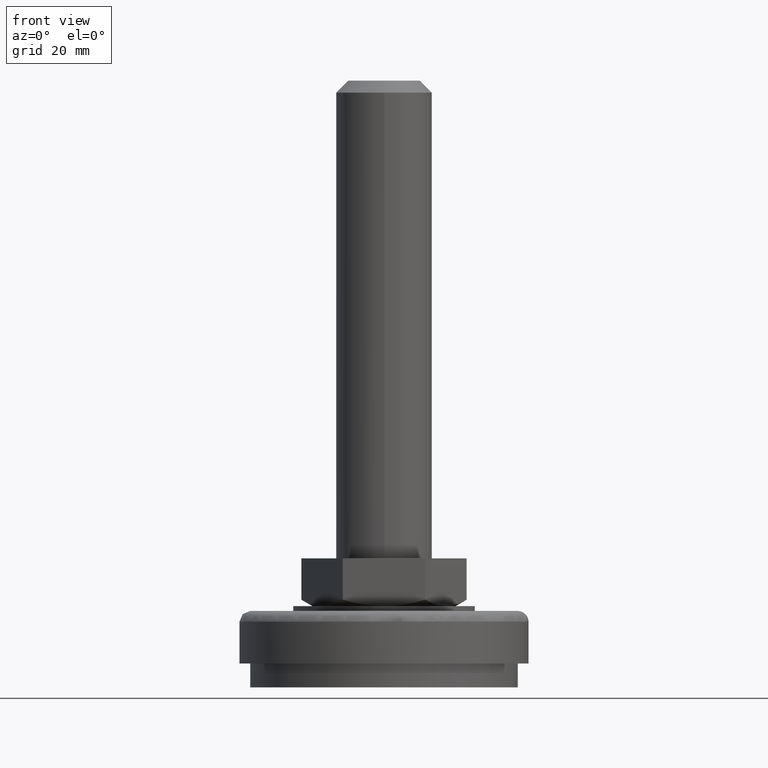
[diagram: clean part render]
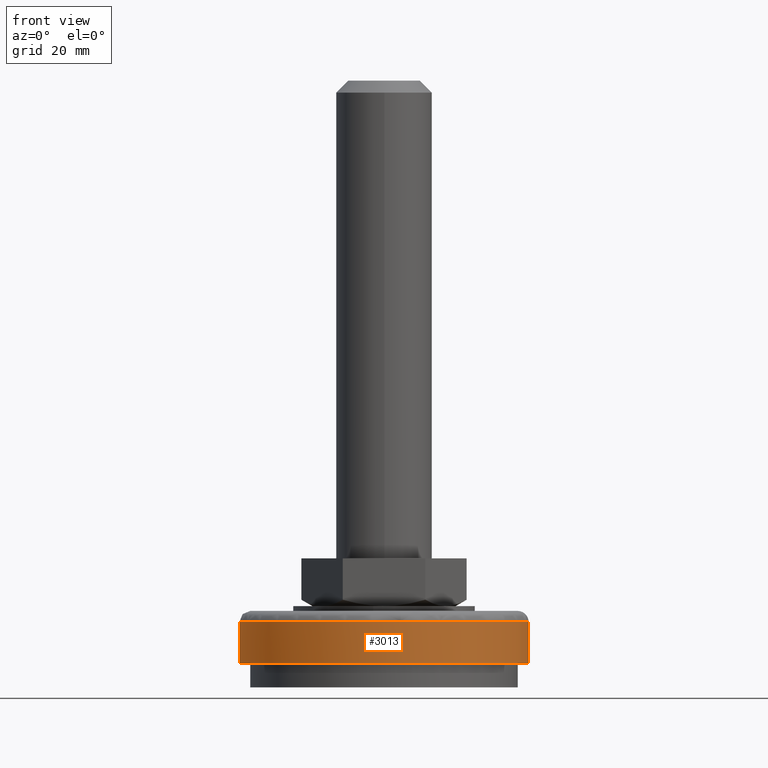
[diagram: same view with one face highlighted and labeled with its STEP entity id]
A machine part, front view. The second image highlights one B-rep face of the part: STEP entity #3013.
In plain terms, the highlighted face is a freeform B-spline surface patch.
Its self-contained STEP definition (entity closure, byte-faithful):
#2862=CARTESIAN_POINT('',(28.318343257993877,10.636443725345039,13.968750000750658));
#2863=CARTESIAN_POINT('',(29.916161585795809,6.382430914391083,13.968750000750655));
#2864=CARTESIAN_POINT('',(30.193577652261471,1.846718320929407,13.968750000750660));
#2865=CARTESIAN_POINT('',(32.040295973190872,-28.346859331332055,13.968750000750656));
#2866=CARTESIAN_POINT('',(1.846718320929407,-30.193577652261471,13.968750000750660));
#2867=CARTESIAN_POINT('',(-28.346859331332055,-32.040295973190872,13.968750000750656));
#2868=CARTESIAN_POINT('',(-30.193577652261471,-1.846718320929407,13.968750000750660));
#2869=CARTESIAN_POINT('',(-32.040295973190872,28.346859331332055,13.968750000750656));
#2870=CARTESIAN_POINT('',(-1.846718320929407,30.193577652261471,13.968750000750660));
#2871=CARTESIAN_POINT('',(28.318343257993877,10.636443725345039,4.775781249981325));
#2872=CARTESIAN_POINT('',(29.916161585795809,6.382430914391083,4.775781249981325));
#2873=CARTESIAN_POINT('',(30.193577652261471,1.846718320929407,4.775781249981325));
#2874=CARTESIAN_POINT('',(32.040295973190872,-28.346859331332055,4.775781249981324));
#2875=CARTESIAN_POINT('',(1.846718320929407,-30.193577652261471,4.775781249981325));
#2876=CARTESIAN_POINT('',(-28.346859331332055,-32.040295973190872,4.775781249981324));
#2877=CARTESIAN_POINT('',(-30.193577652261471,-1.846718320929407,4.775781249981325));
#2878=CARTESIAN_POINT('',(-32.040295973190872,28.346859331332055,4.775781249981324));
#2879=CARTESIAN_POINT('',(-1.846718320929407,30.193577652261471,4.775781249981325));
#2887=(BOUNDED_SURFACE()B_SPLINE_SURFACE(2,1,((#2862,#2871),(#2863,#2872),(#2864,#2873),(#2865,#2874),(#2866,#2875),(#2867,#2876),(#2868,#2877),(#2869,#2878),(#2870,#2879)),.UNSPECIFIED.,.F.,.F.,.U.)B_SPLINE_SURFACE_WITH_KNOTS((3,2,2,2,3),(2,2),(0.0,10.023968209428901,60.143809256573377,110.263650303717900,160.383491350862410),(0.0,9.192968750769333),.UNSPECIFIED.)GEOMETRIC_REPRESENTATION_ITEM()RATIONAL_B_SPLINE_SURFACE(((0.906274169979695,0.906274169979695),(0.941421356237309,0.941421356237309),(1.0,1.0),(0.707106781186548,0.707106781186548),(1.0,1.0),(0.707106781186548,0.707106781186548),(1.0,1.0),(0.707106781186548,0.707106781186548),(1.0,1.0)))REPRESENTATION_ITEM('')SURFACE());
#2888=CARTESIAN_POINT('',(28.318343763673489,10.636442379029370,13.750000000474850));
#2889=VERTEX_POINT('',#2888);
#2890=CARTESIAN_POINT('',(30.249999999999989,1.731788E-015,13.750000000732349));
#2891=VERTEX_POINT('',#2890);
#2892=CARTESIAN_POINT('',(28.318343763673532,10.636442379029386,13.750000000474841));
#2893=CARTESIAN_POINT('',(30.250000000000000,5.493622685728103,13.750000000599350));
#2894=CARTESIAN_POINT('',(30.249999999999989,1.731788E-015,13.750000000732349));
#2902=(BOUNDED_CURVE()B_SPLINE_CURVE(2,(#2892,#2893,#2894),.UNSPECIFIED.,.F.,.U.)B_SPLINE_CURVE_WITH_KNOTS((3,3),(0.440284178408191,0.500000000000000),.UNSPECIFIED.)CURVE()GEOMETRIC_REPRESENTATION_ITEM()RATIONAL_B_SPLINE_CURVE((0.893499563825345,0.930038563199541,1.0))REPRESENTATION_ITEM(''));
#2903=EDGE_CURVE('',#2889,#2891,#2902,.T.);
#2904=ORIENTED_EDGE('',*,*,#2903,.T.);
#2905=CARTESIAN_POINT('',(3.492792937170363,-30.047677073245652,13.750000000722840));
#2906=VERTEX_POINT('',#2905);
#2907=CARTESIAN_POINT('',(30.249999999999989,1.731788E-015,13.750000000732349));
#2908=CARTESIAN_POINT('',(30.250000000000007,-26.937373949967551,13.750000000000004));
#2909=CARTESIAN_POINT('',(3.492792937170364,-30.047677073245655,13.750000000722839));
#2917=(BOUNDED_CURVE()B_SPLINE_CURVE(2,(#2907,#2908,#2909),.UNSPECIFIED.,.F.,.U.)B_SPLINE_CURVE_WITH_KNOTS((3,3),(0.500000000000000,0.729999999999704),.UNSPECIFIED.)CURVE()GEOMETRIC_REPRESENTATION_ITEM()RATIONAL_B_SPLINE_CURVE((1.0,0.730538238691971,0.956886118190077))REPRESENTATION_ITEM(''));
#2918=EDGE_CURVE('',#2891,#2906,#2917,.T.);
#2919=ORIENTED_EDGE('',*,*,#2918,.T.);
#2920=CARTESIAN_POINT('',(-30.250000000000000,0.0,13.750000000000000));
#2921=VERTEX_POINT('',#2920);
#2922=CARTESIAN_POINT('',(3.492792937170363,-30.047677073245648,13.750000000722842));
#2923=CARTESIAN_POINT('',(1.752256330237426,-30.250000000000004,13.750000000000002));
#2924=CARTESIAN_POINT('',(0.0,-30.250000000000000,13.750000000000000));
#2925=CARTESIAN_POINT('',(-30.250000000000000,-30.250000000000000,13.750000000000000));
#2926=CARTESIAN_POINT('',(-30.250000000000000,0.0,13.750000000000000));
#2934=(BOUNDED_CURVE()B_SPLINE_CURVE(2,(#2922,#2923,#2924,#2925,#2926),.UNSPECIFIED.,.F.,.U.)B_SPLINE_CURVE_WITH_KNOTS((3,2,3),(0.729999999999703,0.750000000000000,1.0),.UNSPECIFIED.)CURVE()GEOMETRIC_REPRESENTATION_ITEM()RATIONAL_B_SPLINE_CURVE((0.956886118190075,0.976568542494576,1.0,0.707106781186547,1.0))REPRESENTATION_ITEM(''));
#2935=EDGE_CURVE('',#2906,#2921,#2934,.T.);
#2936=ORIENTED_EDGE('',*,*,#2935,.T.);
#2937=CARTESIAN_POINT('',(-1.846680851674564,30.193579943932601,13.749999999999680));
#2938=VERTEX_POINT('',#2937);
#2939=CARTESIAN_POINT('',(-30.250000000000000,0.0,13.750000000000000));
#2940=CARTESIAN_POINT('',(-30.249999999999993,28.456393903326983,13.749999999999998));
#2941=CARTESIAN_POINT('',(-1.846680851674565,30.193579943932605,13.749999999999677));
#2949=(BOUNDED_CURVE()B_SPLINE_CURVE(2,(#2939,#2940,#2941),.UNSPECIFIED.,.F.,.U.)B_SPLINE_CURVE_WITH_KNOTS((3,3),(0.0,0.239333176366997),.UNSPECIFIED.)CURVE()GEOMETRIC_REPRESENTATION_ITEM()RATIONAL_B_SPLINE_CURVE((1.0,0.719603742420090,0.976072500584328))REPRESENTATION_ITEM(''));
#2950=EDGE_CURVE('',#2921,#2938,#2949,.T.);
#2951=ORIENTED_EDGE('',*,*,#2950,.T.);
#2952=CARTESIAN_POINT('',(-1.846681302979276,30.193579916330741,5.000000000000092));
#2953=VERTEX_POINT('',#2952);
#2954=CARTESIAN_POINT('',(-1.846680851674564,30.193579943932601,13.749999999999680));
#2955=CARTESIAN_POINT('',(-1.846681302979276,30.193579916330741,5.000000000000092));
#2956=QUASI_UNIFORM_CURVE('',1,(#2954,#2955),.UNSPECIFIED.,.F.,.U.);
#2957=EDGE_CURVE('',#2938,#2953,#2956,.T.);
#2958=ORIENTED_EDGE('',*,*,#2957,.T.);
#2959=CARTESIAN_POINT('',(-30.250000000000000,0.0,5.000000000000091));
#2960=VERTEX_POINT('',#2959);
#2961=CARTESIAN_POINT('',(-30.250000000000000,0.0,5.000000000000091));
#2962=CARTESIAN_POINT('',(-30.250000000000004,28.456393477193306,5.000000000000091));
#2963=CARTESIAN_POINT('',(-1.846681302979276,30.193579916330737,5.000000000000092));
#2971=(BOUNDED_CURVE()B_SPLINE_CURVE(2,(#2961,#2962,#2963),.UNSPECIFIED.,.F.,.U.)B_SPLINE_CURVE_WITH_KNOTS((3,3),(0.0,0.239333173787932),.UNSPECIFIED.)CURVE()GEOMETRIC_REPRESENTATION_ITEM()RATIONAL_B_SPLINE_CURVE((1.0,0.719603745441653,0.976072495056890))REPRESENTATION_ITEM(''));
#2972=EDGE_CURVE('',#2960,#2953,#2971,.T.);
#2973=ORIENTED_EDGE('',*,*,#2972,.F.);
#2974=CARTESIAN_POINT('',(30.250000000000000,0.0,5.000000000000091));
#2975=VERTEX_POINT('',#2974);
#2976=CARTESIAN_POINT('',(30.250000000000000,0.0,5.000000000000091));
#2977=CARTESIAN_POINT('',(30.250000000000000,-30.250000000000000,5.000000000000090));
#2978=CARTESIAN_POINT('',(0.0,-30.250000000000000,5.000000000000091));
#2979=CARTESIAN_POINT('',(-30.250000000000000,-30.250000000000000,5.000000000000090));
#2980=CARTESIAN_POINT('',(-30.250000000000000,0.0,5.000000000000091));
#2988=(BOUNDED_CURVE()B_SPLINE_CURVE(2,(#2976,#2977,#2978,#2979,#2980),.UNSPECIFIED.,.F.,.U.)B_SPLINE_CURVE_WITH_KNOTS((3,2,3),(0.500000000000000,0.750000000000000,1.0),.UNSPECIFIED.)CURVE()GEOMETRIC_REPRESENTATION_ITEM()RATIONAL_B_SPLINE_CURVE((1.0,0.707106781186547,1.0,0.707106781186547,1.0))REPRESENTATION_ITEM(''));
#2989=EDGE_CURVE('',#2975,#2960,#2988,.T.);
#2990=ORIENTED_EDGE('',*,*,#2989,.F.);
#2991=CARTESIAN_POINT('',(28.318343757575882,10.636442395263620,5.000000000000092));
#2992=VERTEX_POINT('',#2991);
#2993=CARTESIAN_POINT('',(28.318343757575910,10.636442395263627,5.000000000000092));
#2994=CARTESIAN_POINT('',(30.250000000000004,5.493622694684882,5.000000000000092));
#2995=CARTESIAN_POINT('',(30.250000000000000,0.0,5.000000000000091));
#3003=(BOUNDED_CURVE()B_SPLINE_CURVE(2,(#2993,#2994,#2995),.UNSPECIFIED.,.F.,.U.)B_SPLINE_CURVE_WITH_KNOTS((3,3),(0.440284178317642,0.500000000000000),.UNSPECIFIED.)CURVE()GEOMETRIC_REPRESENTATION_ITEM()RATIONAL_B_SPLINE_CURVE((0.893499563714534,0.930038563093456,1.0))REPRESENTATION_ITEM(''));
#3004=EDGE_CURVE('',#2992,#2975,#3003,.T.);
#3005=ORIENTED_EDGE('',*,*,#3004,.F.);
#3006=CARTESIAN_POINT('',(28.318343763673489,10.636442379029370,13.750000000474850));
#3007=CARTESIAN_POINT('',(28.318343757575882,10.636442395263620,5.000000000000092));
#3008=QUASI_UNIFORM_CURVE('',1,(#3006,#3007),.UNSPECIFIED.,.F.,.U.);
#3009=EDGE_CURVE('',#2889,#2992,#3008,.T.);
#3010=ORIENTED_EDGE('',*,*,#3009,.F.);
#3011=EDGE_LOOP('',(#2904,#2919,#2936,#2951,#2958,#2973,#2990,#3005,#3010));
#3012=FACE_OUTER_BOUND('',#3011,.T.);
#3013=ADVANCED_FACE('',(#3012),#2887,.T.);